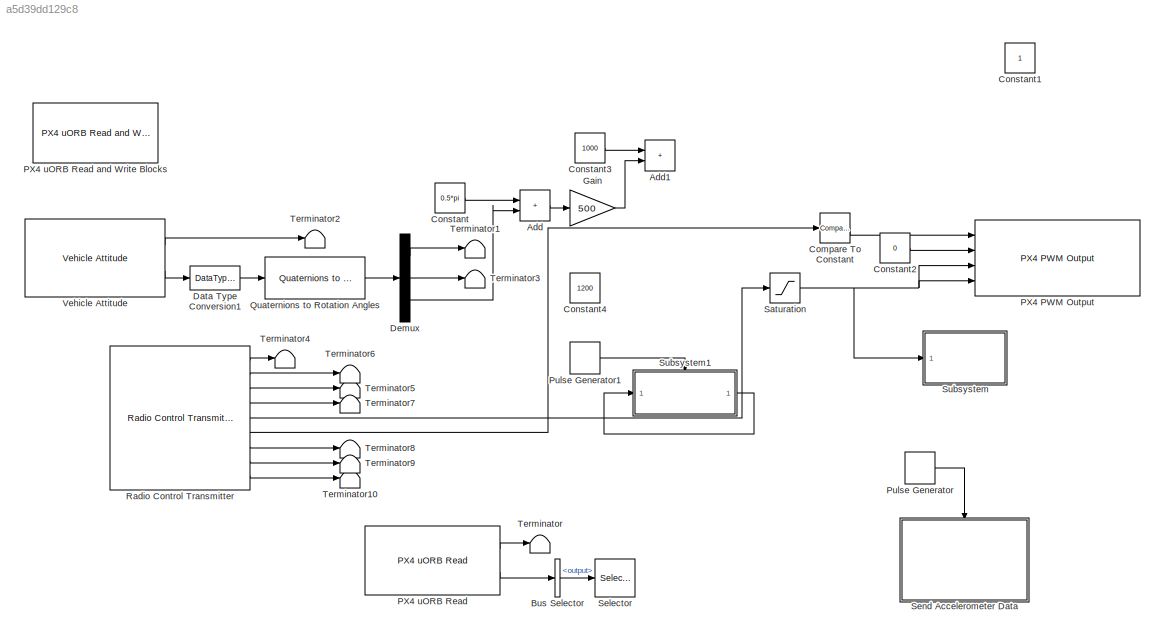
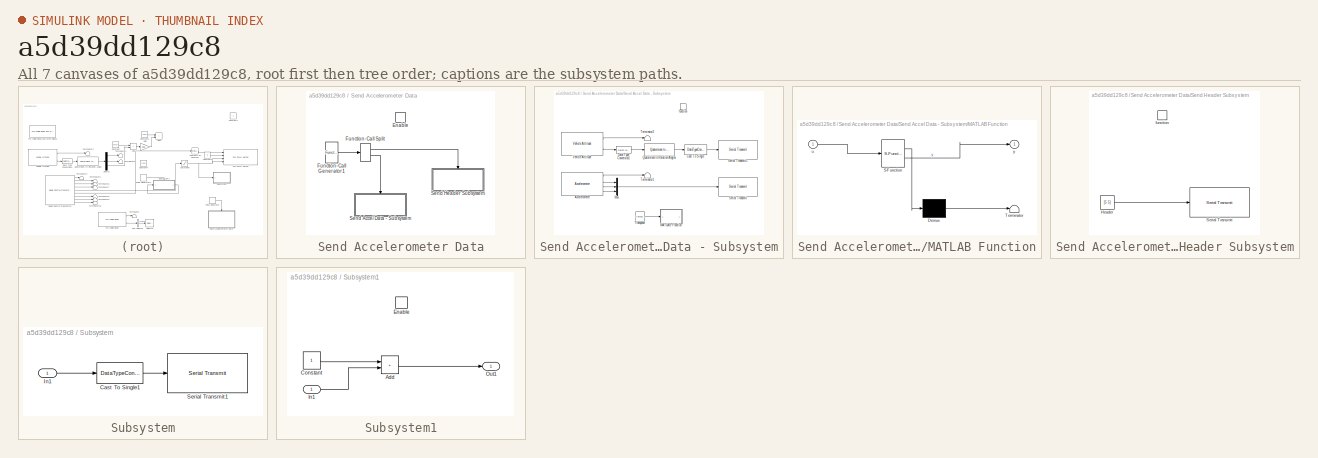
[diagram: thumbnail index - all 7 canvases of the model, root first then tree order]
MODEL slx_a5d39dd129c8
KIND model
CONFIG AbsTol = auto
CONFIG EnableMultiTasking = on
CONFIG FixedStep = auto
CONFIG MaxStep = auto
CONFIG MinStep = auto
CONFIG RelTol = 1e-3
CONFIG SampleTimeConstraint = Unconstrained
CONFIG SolverName = FixedStepAuto
CONFIG StartTime = 0.0
CONFIG StopTime = 10.0
BLOCK [Sum] Add
  Commented = on
  IconShape = rectangular
  Ports = [2, 1]
BLOCK [Sum] Add1
  Commented = on
  IconShape = rectangular
  Ports = [2, 1]
BLOCK [BusSelector] Bus Selector
  Commented = on
  OutputSignals = output
  Ports = [1, 1]
BLOCK [Reference] Compare To Constant  REF=simulink/Logic and Bit
Operations/Compare
To Constant
  Ports = [1, 1]
  SourceBlock = simulink/Logic and Bit\nOperations/Compare\nTo Constant
  SourceProductBaseCode = SL
  SourceType = Compare To Constant
BLOCK [Constant] Constant
  Commented = on
  Value = 0.5*pi
BLOCK [Constant] Constant1
  Commented = on
  OutDataTypeStr = boolean
BLOCK [Constant] Constant2
  OutDataTypeStr = boolean
  Value = 0
BLOCK [Constant] Constant3
  Commented = on
  Value = 1000
BLOCK [Constant] Constant4
  Commented = on
  OutDataTypeStr = uint16
  Value = 1200
BLOCK [DataTypeConversion] Data Type Conversion1
  Commented = on
  OutDataTypeStr = double
  RndMeth = Floor
  SaturateOnIntegerOverflow = off
BLOCK [Demux] Demux
  Commented = on
  Outputs = 3
  Ports = [1, 3]
BLOCK [Gain] Gain
  Commented = on
  Gain = 500
BLOCK [Reference] PX4 PWM Output  REF=px4lib/PX4 PWM Output
  Ports = [4]
  SourceBlock = px4lib/PX4 PWM Output
  SourceProductBaseCode = PX4AUTOPILOTS
  SourceType = PX4 PWM Output
BLOCK [Reference] PX4 uORB Read  REF=px4uORBlib/PX4 uORB Read
  Commented = on
  Ports = [0, 2]
  SourceBlock = px4uORBlib/PX4 uORB Read
  SourceProductBaseCode = PX4AUTOPILOTS
  SourceType = PX4 uORB Read
BLOCK [Reference] PX4 uORB Read and Write Blocks  REF=px4lib/PX4 uORB Read and Write Blocks
  Commented = on
  Ports = []
  SourceBlock = px4lib/PX4 uORB Read and Write Blocks
  SourceProductBaseCode = PX4AUTOPILOTS
BLOCK [DiscretePulseGenerator] Pulse Generator
  Commented = on
  Period = 0.1
  Ports = [0, 1]
  PulseType = Time based
  PulseWidth = 50
BLOCK [DiscretePulseGenerator] Pulse Generator1
  Commented = on
  Period = 1/1000
  Ports = [0, 1]
  PulseType = Time based
  PulseWidth = 50
BLOCK [Reference] Quaternions to Rotation Angles  REF=sharedtransform/Quaternions to Rotation Angles
  AttributesFormatString = Rotation Order: %<rotationOrder>
  Commented = on
  Ports = [1, 1]
  SourceBlock = sharedtransform/Quaternions to Rotation Angles
  SourceProductBaseCode = AE,PW,DR,MT,UV,VE
  SourceType = Quat2Ang
BLOCK [Reference] Radio Control Transmitter  REF=px4Sensorslib/Radio Control Transmitter
  Ports = [0, 9]
  SourceBlock = px4Sensorslib/Radio Control Transmitter
  SourceProductBaseCode = PX4AUTOPILOTS
  SourceType = PX4 Radio Control Transmitter
BLOCK [Saturate] Saturation
  LowerLimit = 1000
  OutDataTypeStr = uint16
  UpperLimit = 2000
BLOCK [Selector] Selector
  Commented = on
  IndexOptions = Index vector (dialog)
  Indices = [1 2]
  InputPortWidth = 16
  OutputSizes = 1
  Ports = [1, 1]
BLOCK [SubSystem] Send Accelerometer Data
  Commented = on
  Ports = [0, 0, 1]
  RequestExecContextInheritance = off
BLOCK [EnablePort] Send Accelerometer Data/Enable
  Ports = []
BLOCK [Reference] Send Accelerometer Data/Function-Call Generator1  REF=simulink/Ports &
Subsystems/Function-Call
Generator
  Ports = [0, 1]
  SourceBlock = simulink/Ports &\nSubsystems/Function-Call\nGenerator
  SourceProductBaseCode = SL
  SourceType = Function-Call Generator
BLOCK [FunctionCallSplit] Send Accelerometer Data/Function-Call Split
  IconShape = distinctive
  NumOutputPorts = 2
  OutputPortLayout = default
  Ports = [1, 2]
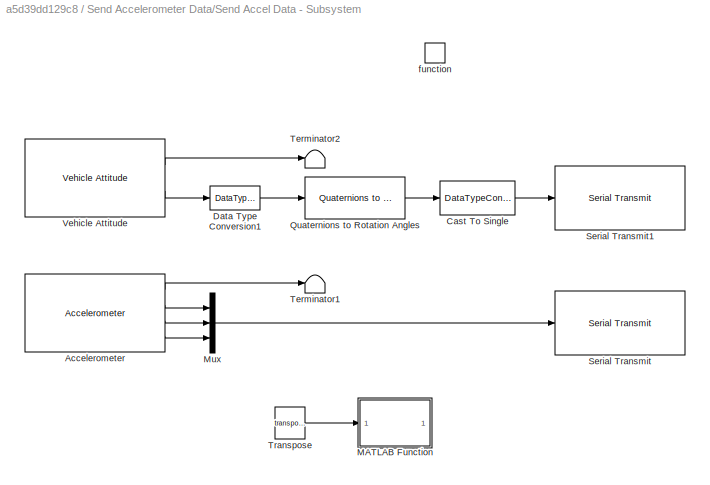
BLOCK [SubSystem] Send Accelerometer Data/Send Accel Data - Subsystem
  Ports = [0, 0, 0, 1]
  RequestExecContextInheritance = off
  TreatAsAtomicUnit = on
BLOCK [Reference] Send Accelerometer Data/Send Accel Data - Subsystem/Accelerometer  REF=px4Sensorslib/Accelerometer
  Commented = on
  Ports = [0, 4]
  SourceBlock = px4Sensorslib/Accelerometer
  SourceProductBaseCode = PX4AUTOPILOTS
  SourceType = PX4 Accelerometer
BLOCK [DataTypeConversion] Send Accelerometer Data/Send Accel Data - Subsystem/Cast To Single
  OutDataTypeStr = single
  RndMeth = Floor
  SaturateOnIntegerOverflow = off
BLOCK [DataTypeConversion] Send Accelerometer Data/Send Accel Data - Subsystem/Data Type Conversion1
  OutDataTypeStr = double
  RndMeth = Floor
  SaturateOnIntegerOverflow = off
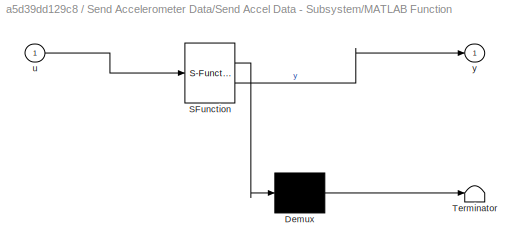
BLOCK [SubSystem] Send Accelerometer Data/Send Accel Data - Subsystem/MATLAB Function
  Commented = on
  ErrorFcn = Stateflow.Translate.translate
  PermitHierarchicalResolution = ExplicitOnly
  Ports = [1, 1]
  RequestExecContextInheritance = off
  SFBlockType = MATLAB Function
  TreatAsAtomicUnit = on
BLOCK [Demux] Send Accelerometer Data/Send Accel Data - Subsystem/MATLAB Function/ Demux 
  Outputs = 1
  Ports = [1, 1]
BLOCK [S-Function] Send Accelerometer Data/Send Accel Data - Subsystem/MATLAB Function/ SFunction 
  EnableBusSupport = on
  FunctionName = sf_sfun
  PortCounts = [1 2]
  Ports = [1, 2]
  SFcnIsStateOwnerBlock = off
  SFunctionDeploymentMode = off
  Tag = Stateflow S-Function 2
BLOCK [Terminator] Send Accelerometer Data/Send Accel Data - Subsystem/MATLAB Function/ Terminator 
BLOCK [Inport] Send Accelerometer Data/Send Accel Data - Subsystem/MATLAB Function/u
BLOCK [Outport] Send Accelerometer Data/Send Accel Data - Subsystem/MATLAB Function/y
BLOCK [Mux] Send Accelerometer Data/Send Accel Data - Subsystem/Mux
  Commented = on
  DisplayOption = bar
  Inputs = 3
  Ports = [3, 1]
BLOCK [Reference] Send Accelerometer Data/Send Accel Data - Subsystem/Quaternions to Rotation Angles  REF=sharedtransform/Quaternions to Rotation Angles
  AttributesFormatString = Rotation Order: %<rotationOrder>
  Ports = [1, 1]
  SourceBlock = sharedtransform/Quaternions to Rotation Angles
  SourceProductBaseCode = AE,PW,DR,MT,UV,VE
  SourceType = Quat2Ang
BLOCK [Reference] Send Accelerometer Data/Send Accel Data - Subsystem/Serial Transmit  REF=px4lib/Serial Transmit
  Commented = on
  Ports = [1]
  SourceBlock = px4lib/Serial Transmit
  SourceProductBaseCode = PX4AUTOPILOTS
  SourceType = PX4 Serial Transmit
BLOCK [Reference] Send Accelerometer Data/Send Accel Data - Subsystem/Serial Transmit1  REF=px4lib/Serial Transmit
  Ports = [1]
  SourceBlock = px4lib/Serial Transmit
  SourceProductBaseCode = PX4AUTOPILOTS
  SourceType = PX4 Serial Transmit
BLOCK [Terminator] Send Accelerometer Data/Send Accel Data - Subsystem/Terminator1
  Commented = on
BLOCK [Terminator] Send Accelerometer Data/Send Accel Data - Subsystem/Terminator2
BLOCK [Math] Send Accelerometer Data/Send Accel Data - Subsystem/Transpose
  Commented = on
  Operator = transpose
  Ports = [1, 1]
BLOCK [Reference] Send Accelerometer Data/Send Accel Data - Subsystem/Vehicle Attitude  REF=px4Sensorslib/Vehicle Attitude
  Ports = [0, 2]
  SourceBlock = px4Sensorslib/Vehicle Attitude
  SourceProductBaseCode = PX4AUTOPILOTS
  SourceType = PX4 Vehicle Attitude
BLOCK [TriggerPort] Send Accelerometer Data/Send Accel Data - Subsystem/function
  Ports = []
  StatesWhenEnabling = held
  TriggerType = function-call
  VariantControl = Variant
BLOCK [SubSystem] Send Accelerometer Data/Send Header Subsystem
  Commented = on
  Ports = [0, 0, 0, 1]
  RequestExecContextInheritance = off
  TreatAsAtomicUnit = on
BLOCK [Constant] Send Accelerometer Data/Send Header Subsystem/Header
  OutDataTypeStr = uint8
  SampleTime = -1
  Value = [5 5]
BLOCK [Reference] Send Accelerometer Data/Send Header Subsystem/Serial Transmit  REF=px4lib/Serial Transmit
  Ports = [1]
  SourceBlock = px4lib/Serial Transmit
  SourceProductBaseCode = PX4AUTOPILOTS
  SourceType = PX4 Serial Transmit
BLOCK [TriggerPort] Send Accelerometer Data/Send Header Subsystem/function
  Ports = []
  StatesWhenEnabling = held
  TriggerType = function-call
  VariantControl = Variant
BLOCK [SubSystem] Subsystem
  Ports = [1]
  RequestExecContextInheritance = off
BLOCK [DataTypeConversion] Subsystem/Cast To Single1
  OutDataTypeStr = single
  RndMeth = Floor
  SaturateOnIntegerOverflow = off
BLOCK [Inport] Subsystem/In1
BLOCK [Reference] Subsystem/Serial Transmit1  REF=px4lib/Serial Transmit
  Ports = [1]
  SourceBlock = px4lib/Serial Transmit
  SourceProductBaseCode = PX4AUTOPILOTS
  SourceType = PX4 Serial Transmit
BLOCK [SubSystem] Subsystem1
  Commented = on
  Ports = [1, 1, 1]
  RequestExecContextInheritance = off
BLOCK [Sum] Subsystem1/Add
  IconShape = rectangular
  Ports = [2, 1]
BLOCK [Constant] Subsystem1/Constant
BLOCK [EnablePort] Subsystem1/Enable
  Ports = []
BLOCK [Inport] Subsystem1/In1
BLOCK [Outport] Subsystem1/Out1
BLOCK [Terminator] Terminator
  Commented = on
BLOCK [Terminator] Terminator1
  Commented = on
BLOCK [Terminator] Terminator10
BLOCK [Terminator] Terminator2
  Commented = on
BLOCK [Terminator] Terminator3
  Commented = on
BLOCK [Terminator] Terminator4
BLOCK [Terminator] Terminator5
BLOCK [Terminator] Terminator6
BLOCK [Terminator] Terminator7
BLOCK [Terminator] Terminator8
BLOCK [Terminator] Terminator9
BLOCK [Reference] Vehicle Attitude  REF=px4Sensorslib/Vehicle Attitude
  Commented = on
  Ports = [0, 2]
  SourceBlock = px4Sensorslib/Vehicle Attitude
  SourceProductBaseCode = PX4AUTOPILOTS
  SourceType = PX4 Vehicle Attitude
LINE Add:1 -> Gain:1
LINE Bus Selector:1 -> Selector:1
LINE Compare To Constant:1 -> PX4 PWM Output:1
LINE Constant2:1 -> PX4 PWM Output:2
LINE Constant3:1 -> Add1:1
LINE Constant:1 -> Add:1
LINE Data Type Conversion1:1 -> Quaternions to Rotation Angles:1
LINE Demux:1 -> Terminator1:1
LINE Demux:2 -> Terminator3:1
LINE Demux:3 -> Add:2
LINE Gain:1 -> Add1:2
LINE PX4 uORB Read:1 -> Terminator:1
LINE PX4 uORB Read:2 -> Bus Selector:1
LINE Pulse Generator1:1 -> Subsystem1:enable
LINE Pulse Generator:1 -> Send Accelerometer Data:enable
LINE Quaternions to Rotation Angles:1 -> Demux:1
LINE Radio Control Transmitter:1 -> Terminator4:1
LINE Radio Control Transmitter:2 -> Terminator6:1
LINE Radio Control Transmitter:3 -> Terminator5:1
LINE Radio Control Transmitter:4 -> Terminator7:1
LINE Radio Control Transmitter:5 -> Saturation:1
LINE Radio Control Transmitter:6 -> Compare To Constant:1
LINE Radio Control Transmitter:7 -> Terminator8:1
LINE Radio Control Transmitter:8 -> Terminator9:1
LINE Radio Control Transmitter:9 -> Terminator10:1
NET Saturation:1 -> PX4 PWM Output:3, PX4 PWM Output:4, Subsystem:1
LINE Send Accelerometer Data/Function-Call Generator1:1 -> Send Accelerometer Data/Function-Call Split:1
LINE Send Accelerometer Data/Function-Call Split:1 -> Send Accelerometer Data/Send Header Subsystem:trigger
LINE Send Accelerometer Data/Function-Call Split:2 -> Send Accelerometer Data/Send Accel Data - Subsystem:trigger
LINE Send Accelerometer Data/Send Accel Data - Subsystem/Accelerometer:1 -> Send Accelerometer Data/Send Accel Data - Subsystem/Terminator1:1
LINE Send Accelerometer Data/Send Accel Data - Subsystem/Accelerometer:2 -> Send Accelerometer Data/Send Accel Data - Subsystem/Mux:1
LINE Send Accelerometer Data/Send Accel Data - Subsystem/Accelerometer:3 -> Send Accelerometer Data/Send Accel Data - Subsystem/Mux:2
LINE Send Accelerometer Data/Send Accel Data - Subsystem/Accelerometer:4 -> Send Accelerometer Data/Send Accel Data - Subsystem/Mux:3
LINE Send Accelerometer Data/Send Accel Data - Subsystem/Cast To Single:1 -> Send Accelerometer Data/Send Accel Data - Subsystem/Serial Transmit1:1
LINE Send Accelerometer Data/Send Accel Data - Subsystem/Data Type Conversion1:1 -> Send Accelerometer Data/Send Accel Data - Subsystem/Quaternions to Rotation Angles:1
LINE Send Accelerometer Data/Send Accel Data - Subsystem/Mux:1 -> Send Accelerometer Data/Send Accel Data - Subsystem/Serial Transmit:1
LINE Send Accelerometer Data/Send Accel Data - Subsystem/Quaternions to Rotation Angles:1 -> Send Accelerometer Data/Send Accel Data - Subsystem/Cast To Single:1
LINE Send Accelerometer Data/Send Accel Data - Subsystem/Transpose:1 -> Send Accelerometer Data/Send Accel Data - Subsystem/MATLAB Function:1
LINE Send Accelerometer Data/Send Accel Data - Subsystem/Vehicle Attitude:1 -> Send Accelerometer Data/Send Accel Data - Subsystem/Terminator2:1
LINE Send Accelerometer Data/Send Accel Data - Subsystem/Vehicle Attitude:2 -> Send Accelerometer Data/Send Accel Data - Subsystem/Data Type Conversion1:1
LINE Send Accelerometer Data/Send Header Subsystem/Header:1 -> Send Accelerometer Data/Send Header Subsystem/Serial Transmit:1
LINE Subsystem/Cast To Single1:1 -> Subsystem/Serial Transmit1:1
LINE Subsystem/In1:1 -> Subsystem/Cast To Single1:1
LINE Subsystem1/Add:1 -> Subsystem1/Out1:1
LINE Subsystem1/Constant:1 -> Subsystem1/Add:1
LINE Subsystem1/In1:1 -> Subsystem1/Add:2
LINE Subsystem1:1 -> Subsystem1:1
LINE Vehicle Attitude:1 -> Terminator2:1
LINE Vehicle Attitude:2 -> Data Type Conversion1:1
note: NET lines group one-source signal fan-out (src -> all destinations, sorted); 1:1 wires keep LINE
CHART Send Accelerometer Data/Send Accel Data - Subsystem/MATLAB Function states=1 transitions=1
  STATE_LABEL 'eML_blk_kernel()'
  STATE_LABEL 'SCRIPT:\nfunction y = fcn(u)\ny = char(u);\n'
CHART  states=0 transitions=0
